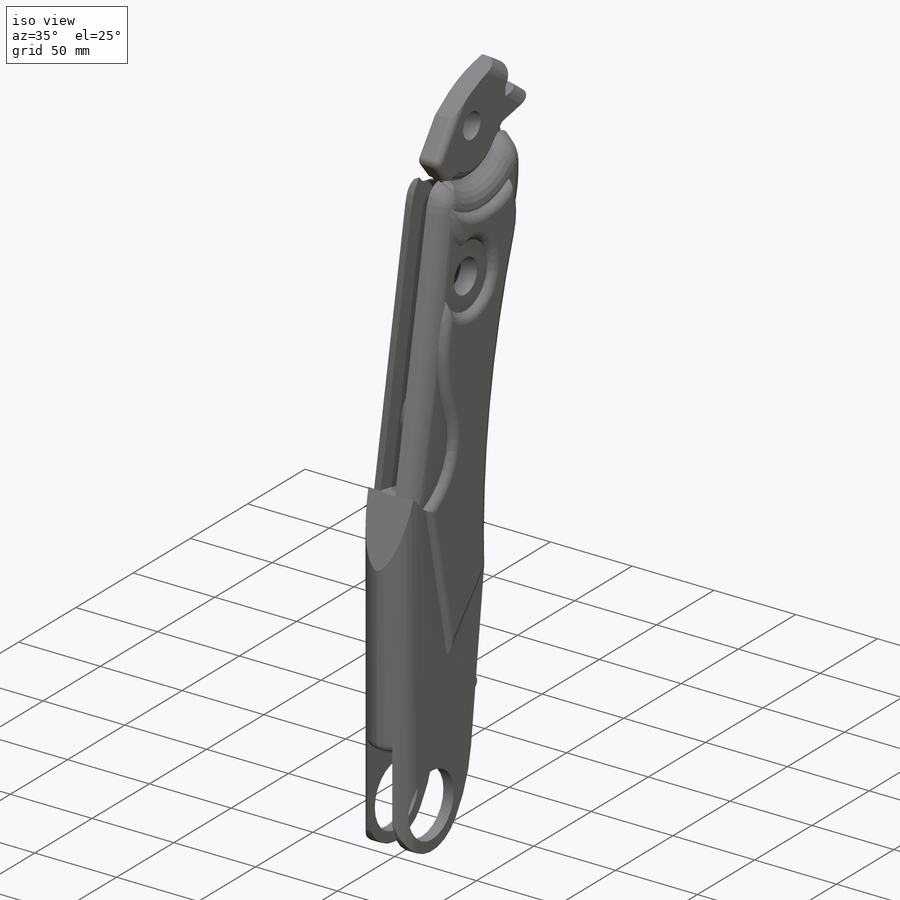
[diagram: iso view]
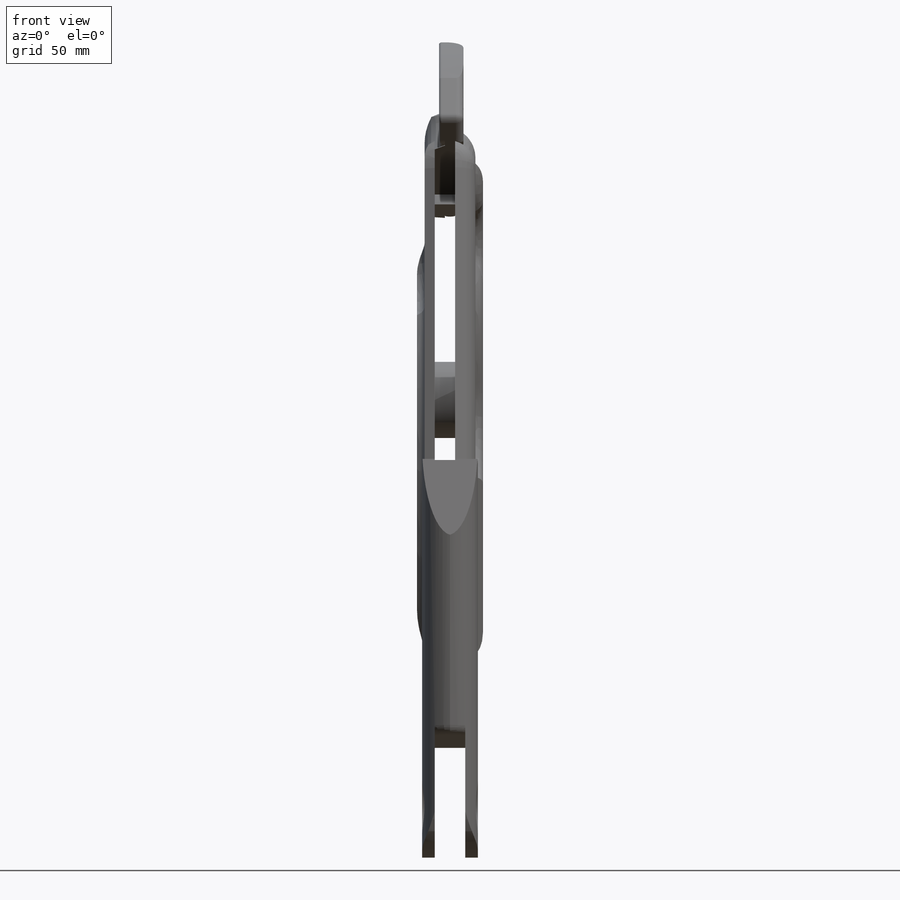
[diagram: front view]
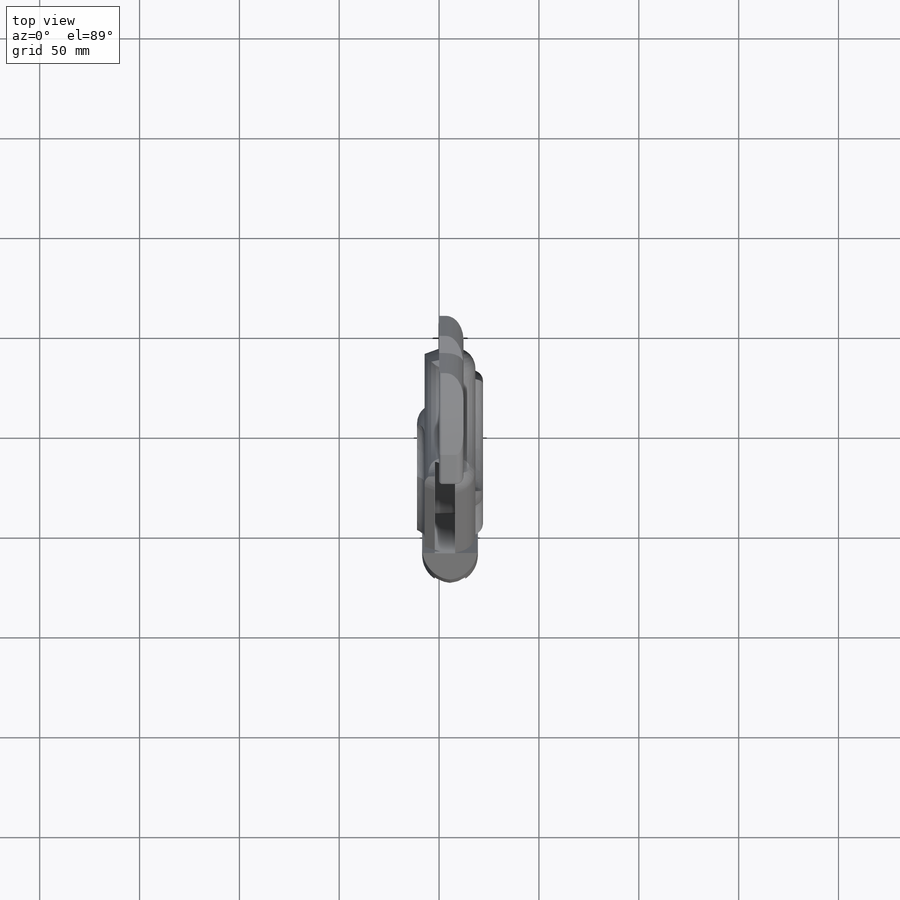
[diagram: top view]
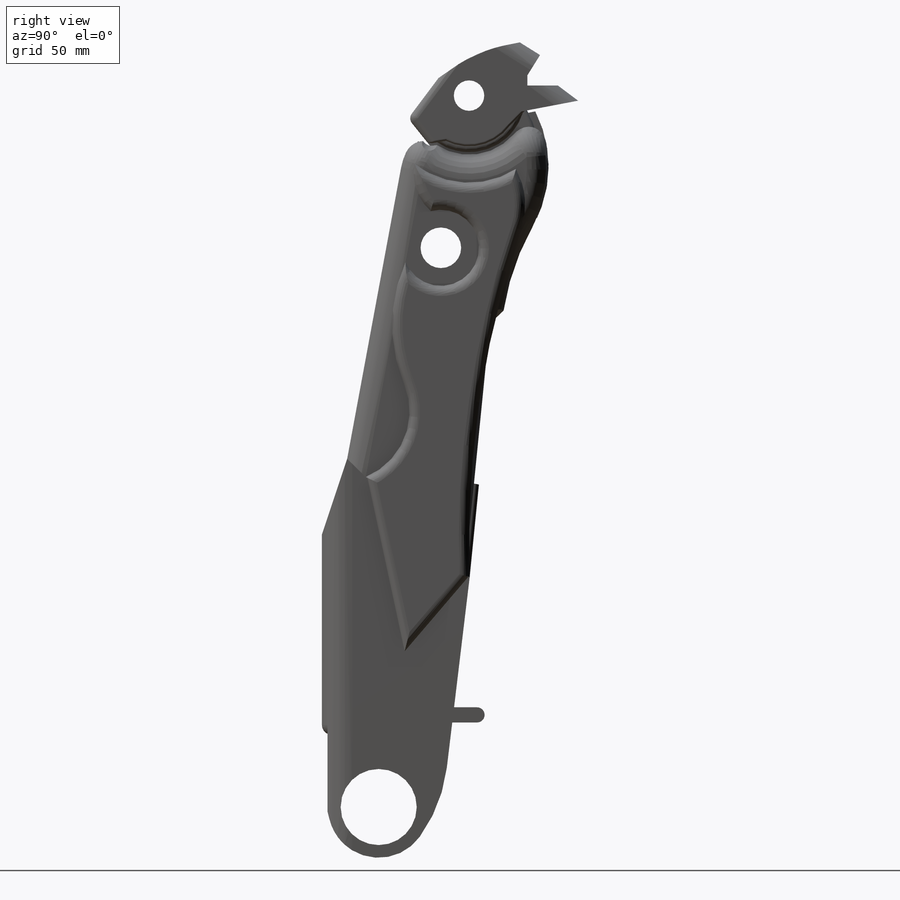
[diagram: right view]
SOLIDWORKS PART (.sldprt)
format: sldprt  version: not decoded by parser v0  size: 1,451,520 bytes
history: native  units: mm
features: fillet x21, sketch x20, extrude x12, cut_extrude x8, mirror x5, plane x4, material x1 (+13 scaffold rows collapsed)
feature tree (84):
  scaffold x13  (default folders/planes/origin — collapsed)
  material  "Material <not specified>"
  sketch  "Sketch1"  dims[D1=15.24mm D2=15.24mm D3=6.35mm D4=5.08mm D5=10.16mm D6=6.35mm D7=15.24mm D8=20.32mm D9=12.7mm D10=10.16mm D11=38.1mm D12=6.35mm D13=10.16mm D14=10.16mm D15=25.4mm D16=5.08mm D17=6.35mm D18=10.16mm D19=10.16mm D20=6.35mm D21=5.08mm D22=15.24mm D23=7.62mm D24=10.16mm]
  extrude  "Boss-Extrude1"  Depth=12.192mm
  sketch  "Sketch2"  dims[D1=50.8mm D2=30.48mm]
  extrude  "Boss-Extrude2"  Depth=12.192mm
  sketch  "Sketch3"
  extrude  "Boss-Extrude3"  Depth=10.922mm
  fillet  "Fillet1"  Radius=1.27mm
  fillet  "Fillet2"  Radius=3.81mm
  sketch  "Sketch4"  dims[D2=6.35mm D1=12.7mm]
  extrude  "Boss-Extrude4"  Depth=25.4mm
  plane  "Plane1"
  mirror  "Mirror1"
  fillet  "Fillet3"  Radius=1.27mm
  fillet  "Fillet4"  Radius=3.81mm
  fillet  "Fillet5"  Radius=8.89mm
  fillet  "Fillet6"  Radius=71.12mm
  fillet  "Fillet7"  Radius=71.12mm
  fillet  "Fillet8"  Radius=2.54mm
  fillet  "Fillet9"  Radius=1.27mm
  plane  "Plane2"
  sketch  "Sketch5"  dims[c1.D3=152.4mm c1.D13=57.15mm c1.D1=254.0mm c1.D2=30.48mm c1.D4=7.62mm c2.D2=12.7mm c2.D3=19.05mm c2.D4=171.45mm c2.D5=31.75mm c2.D6=30.48mm c2.D7=35.56mm c2.D8=12.7mm c2.D9=12.7mm c2.D10=127.0mm c2.D11=44.45mm c2.D12=50.8mm]
  extrude  "Boss-Extrude5"  Depth=5.08mm
  mirror  "Mirror4"
  fillet  "Fillet10"  Radius=2.54mm
  fillet  "Fillet11"  Radius=2.54mm
  sketch  "Sketch6"  dims[c1.D3=~28.285814mm c1.D1=1.27mm c1.D2=1.27mm c2.D3=1.27mm c2.D4=1.27mm c2.D5=5.08mm c2.D6=6.35mm]
  extrude  "Boss-Extrude6"  Depth=10.16mm
  mirror  "Mirror5"
  mirror  "Mirror6"
  fillet  "Fillet12"  Radius=12.7mm
  fillet  "Fillet13"  Radius=10.16mm
  fillet  "Fillet14"  Radius=10.16mm
  sketch  "Sketch7"  dims[c1.D7=38.1mm c1.D1=25.4mm c1.D2=38.1mm c1.D3=12.7mm c1.D4=127.0mm c1.D5=50.8mm c1.D6=12.7mm c1.D8=95.25mm c1.D9=8.89mm c2.D7=11.43mm]
  extrude  "Boss-Extrude7"  Depth=27.94mm
  fillet  "Fillet15"  Radius=15.24mm
  mirror  "Mirror7"
  fillet  "Fillet16"  Radius=25.4mm
  sketch  "Sketch9"  dims[D1=38.1mm]
  cut_extrude  "Cut-Extrude1"  [1 undecoded]
  sketch  "Sketch10"  dims[D1=15.24mm D2=58.42mm]
  cut_extrude  "Cut-Extrude2"  Depth=73.66mm
  fillet  "Fillet17"  Radius=5.08mm
  plane  "Plane3"  Offset=86.36mm
  sketch  "Sketch11"
  cut_extrude  "Cut-Extrude3"  [1 undecoded]
  sketch  "Sketch12"
  cut_extrude  "Cut-Extrude4"  [1 undecoded]
  sketch  "Sketch13"  dims[c1.D2=10.16mm c1.D3=20.32mm c1.D1=15.24mm c2.D3=63.5mm c2.D4=114.3mm c2.D5=63.5mm c2.D1=63.5mm c2.D2=~9.517178mm c3.D4=15.24mm c3.D1=76.2mm]
  cut_extrude  "Cut-Extrude5"  [1 undecoded]
  sketch  "Sketch14"  dims[c1.D1=10.16mm c1.D2=5.08mm c1.D3=~54.011383mm c1.D4=~136.563356mm c2.D3=~54.011383mm c2.D4=~136.563356mm]
  cut_extrude  "Cut-Extrude6"  Depth=48.26mm
  sketch  "Sketch16"  dims[D2=38.1mm D1=152.4mm D3=22.86mm]
  extrude  "Boss-Extrude8"  Depth=17.78mm
  sketch  "Sketch17"  dims[D1=30.48mm]
  cut_extrude  "Cut-Extrude9"  Depth=10.16mm
  sketch  "Sketch18"  dims[c1.D3=30.48mm c1.D7=30.48mm c1.D10=101.6mm c1.D13=304.8mm c1.D14=203.2mm c1.D1=76.2mm c1.D2=31.75mm c2.D3=~160.932165mm c2.D4=25.4mm c2.D5=10.16mm c2.D6=21.59mm c2.D8=101.6mm c2.D9=19.05mm c2.D11=76.2mm c2.D12=30.48mm]
  extrude  "Boss-Extrude9"  Depth=3.81mm
  fillet  "Fillet18"  Radius=5.08mm
  fillet  "Fillet19"  Radius=10.16mm
  sketch  "Sketch19"  dims[c1.D1=19.05mm c1.D2=25.4mm c1.D7=38.1mm c1.D8=~188.159657mm c1.D11=76.2mm c1.D12=35.56mm c1.D3=50.8mm c1.D4=5.08mm c1.D5=2.54mm c1.D6=30.48mm c2.D8=19.05mm c2.D9=88.9mm c2.D10=60.96mm]
  extrude  "Boss-Extrude10"  Depth=3.81mm
  fillet  "Fillet20"  Radius=5.08mm
  plane  "Plane4"
  sketch  "Sketch20"  dims[D1=12.7mm D2=7.62mm D3=30.48mm D4=7.62mm]
  extrude  "Boss-Extrude11"  Depth=8.89mm
  fillet  "Fillet21"  Radius=3.81mm
  sketch  "Sketch21"  dims[D1=6.35mm D2=10.16mm]
  cut_extrude  "Cut-Extrude10"  [1 undecoded]
  sketch  "Sketch22"  dims[D1=6.35mm]
  extrude  "Boss-Extrude12"  Depth=7.62mm
decode coverage: 53 of 66 modeling features carry decoded parameters
note: ~ marks probable driven/reference dimensions
note: 5 parameter values undecoded
summary: no parameter record found for 5 features
note: suppression state not decoded; provenance and decode notes live in map.json
